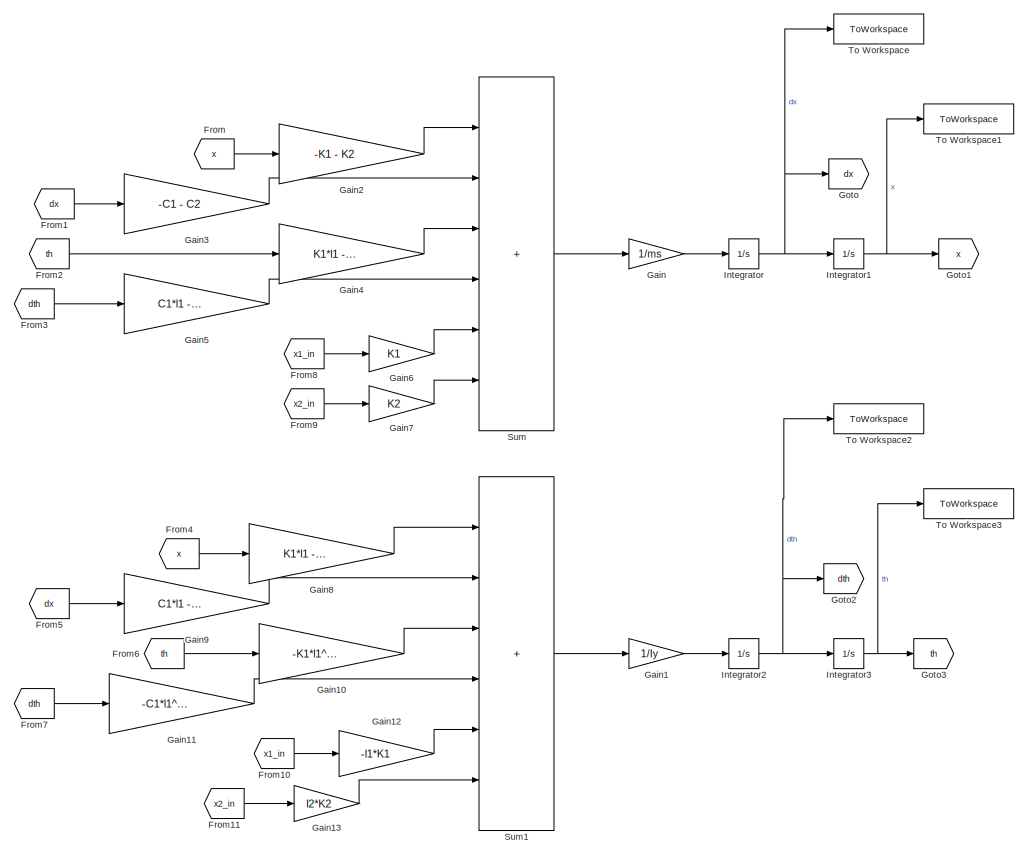
[diagram: root canvas - part 1/3, center side, full height]
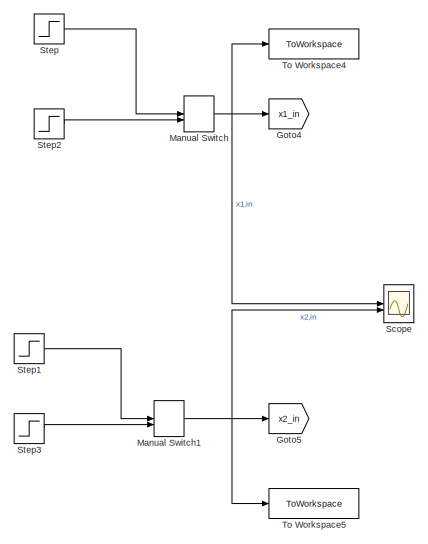
[diagram: root canvas - part 2/3, middle left region]
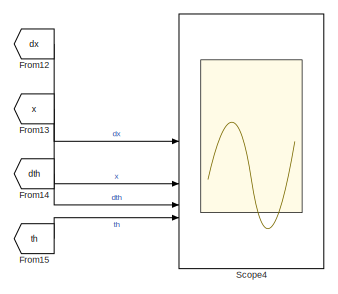
[diagram: root canvas - part 3/3, middle right region]
MODEL slx_75d889b5c3c4
KIND model
CONFIG AbsTol = auto
CONFIG EnableMultiTasking = off
CONFIG FixedStep = 1e-3
CONFIG MaxStep = auto
CONFIG MinStep = auto
CONFIG RelTol = 1e-3
CONFIG SampleTimeConstraint = Unconstrained
CONFIG SolverName = FixedStepAuto
CONFIG StartTime = 0.0
CONFIG StopTime = 10.0
BLOCK [From] From
  GotoTag = x
BLOCK [From] From1
  GotoTag = dx
BLOCK [From] From10
  GotoTag = x1_in
BLOCK [From] From11
  GotoTag = x2_in
BLOCK [From] From12
  GotoTag = dx
BLOCK [From] From13
  GotoTag = x
BLOCK [From] From14
  GotoTag = dth
BLOCK [From] From15
  GotoTag = th
BLOCK [From] From2
  GotoTag = th
BLOCK [From] From3
  GotoTag = dth
BLOCK [From] From4
  GotoTag = x
BLOCK [From] From5
  GotoTag = dx
BLOCK [From] From6
  GotoTag = th
BLOCK [From] From7
  GotoTag = dth
BLOCK [From] From8
  GotoTag = x1_in
BLOCK [From] From9
  GotoTag = x2_in
BLOCK [Gain] Gain
  Gain = 1/ms
BLOCK [Gain] Gain1
  Gain = 1/Iy
BLOCK [Gain] Gain10
  Gain = -K1*l1^2 - K2*l2^2
BLOCK [Gain] Gain11
  Gain = -C1*l1^2 - C2*l2^2
BLOCK [Gain] Gain12
  Gain = -l1*K1
BLOCK [Gain] Gain13
  Gain = l2*K2
BLOCK [Gain] Gain2
  Gain = -K1 - K2
BLOCK [Gain] Gain3
  Gain = -C1 - C2
BLOCK [Gain] Gain4
  Gain = K1*l1 - K2*l2
BLOCK [Gain] Gain5
  Gain = C1*l1 - C2*l2
BLOCK [Gain] Gain6
  Gain = K1
BLOCK [Gain] Gain7
  Gain = K2
BLOCK [Gain] Gain8
  Gain = K1*l1 - K2*l2
BLOCK [Gain] Gain9
  Gain = C1*l1 - C2*l2
BLOCK [Goto] Goto
  GotoTag = dx
BLOCK [Goto] Goto1
  GotoTag = x
BLOCK [Goto] Goto2
  GotoTag = dth
BLOCK [Goto] Goto3
  GotoTag = th
BLOCK [Goto] Goto4
  GotoTag = x1_in
BLOCK [Goto] Goto5
  GotoTag = x2_in
BLOCK [Integrator] Integrator
BLOCK [Integrator] Integrator1
BLOCK [Integrator] Integrator2
BLOCK [Integrator] Integrator3
BLOCK [ManualSwitch] Manual Switch
  CurrentSetting = 0
BLOCK [ManualSwitch] Manual Switch1
  CurrentSetting = 0
BLOCK [Scope] Scope
  Floating = off
  NumInputPorts = 2
  ScopeSpecificationString = Simulink.scopes.TimeScopeBlockCfg('CurrentConfiguration', extmgr.ConfigurationSet(extmgr.Configuration('Core','General UI',true,'FigureColor',[1 1 1]),extmgr.Configuration('Core','Source UI',true),extmgr.Configuration('Sources','WiredSimulink',true),extmgr.Configuration('Visuals','Time Domain',true,'SerializedDisplays',{struct('MinYLimReal','-0.125','MaxYLimReal','1.125','YLabelReal','','MinYLimMa...<+2236ch>
BLOCK [Scope] Scope4
  Floating = off
  NumInputPorts = 4
  ScopeSpecificationString = Simulink.scopes.TimeScopeBlockCfg('CurrentConfiguration', extmgr.ConfigurationSet(extmgr.Configuration('Core','General UI',true,'FigureColor',[1 1 1]),extmgr.Configuration('Core','Source UI',true),extmgr.Configuration('Sources','WiredSimulink',true,'DataLoggingVariableName','ScopeData1'),extmgr.Configuration('Visuals','Time Domain',true,'SerializedDisplays',{struct('MinYLimReal','-2.03567','MaxYLi...<+3953ch>
BLOCK [Step] Step
  SampleTime = 0
BLOCK [Step] Step1
  SampleTime = 0
  Time = 1 + (l1 + l2)/(speed)
BLOCK [Step] Step2
  SampleTime = 0
BLOCK [Step] Step3
  SampleTime = 0
  Time = 2
BLOCK [Sum] Sum
  IconShape = rectangular
  Inputs = |++++++
BLOCK [Sum] Sum1
  IconShape = rectangular
  Inputs = |++++++
BLOCK [ToWorkspace] To Workspace
  FixptAsFi = on
  MaxDataPoints = inf
  SampleTime = 0.01
  SaveFormat = Timeseries
  VariableName = dx
BLOCK [ToWorkspace] To Workspace1
  FixptAsFi = on
  MaxDataPoints = inf
  SampleTime = 0.01
  SaveFormat = Timeseries
  VariableName = x
BLOCK [ToWorkspace] To Workspace2
  FixptAsFi = on
  MaxDataPoints = inf
  SampleTime = 0.01
  SaveFormat = Timeseries
  VariableName = dth
BLOCK [ToWorkspace] To Workspace3
  FixptAsFi = on
  MaxDataPoints = inf
  SampleTime = 0.01
  SaveFormat = Timeseries
  VariableName = th
BLOCK [ToWorkspace] To Workspace4
  FixptAsFi = on
  MaxDataPoints = inf
  SampleTime = 0.01
  SaveFormat = Timeseries
  VariableName = x1_in
BLOCK [ToWorkspace] To Workspace5
  FixptAsFi = on
  MaxDataPoints = inf
  SampleTime = 0.01
  SaveFormat = Timeseries
  VariableName = x2_in
LINE From10:1 -> Gain12:1
LINE From11:1 -> Gain13:1
LINE From12:1 -> Scope4:1
LINE From13:1 -> Scope4:2
LINE From14:1 -> Scope4:3
LINE From15:1 -> Scope4:4
LINE From1:1 -> Gain3:1
LINE From2:1 -> Gain4:1
LINE From3:1 -> Gain5:1
LINE From4:1 -> Gain8:1
LINE From5:1 -> Gain9:1
LINE From6:1 -> Gain10:1
LINE From7:1 -> Gain11:1
LINE From8:1 -> Gain6:1
LINE From9:1 -> Gain7:1
LINE From:1 -> Gain2:1
LINE Gain10:1 -> Sum1:3
LINE Gain11:1 -> Sum1:4
LINE Gain12:1 -> Sum1:5
LINE Gain13:1 -> Sum1:6
LINE Gain1:1 -> Integrator2:1
LINE Gain2:1 -> Sum:1
LINE Gain3:1 -> Sum:2
LINE Gain4:1 -> Sum:3
LINE Gain5:1 -> Sum:4
LINE Gain6:1 -> Sum:5
LINE Gain7:1 -> Sum:6
LINE Gain8:1 -> Sum1:1
LINE Gain9:1 -> Sum1:2
LINE Gain:1 -> Integrator:1
NET Integrator1:1 -> Goto1:1, To Workspace1:1
NET Integrator2:1 -> Goto2:1, Integrator3:1, To Workspace2:1
NET Integrator3:1 -> Goto3:1, To Workspace3:1
NET Integrator:1 -> Goto:1, Integrator1:1, To Workspace:1
NET Manual Switch1:1 -> Goto5:1, Scope:2, To Workspace5:1
NET Manual Switch:1 -> Goto4:1, Scope:1, To Workspace4:1
LINE Step1:1 -> Manual Switch1:1
LINE Step2:1 -> Manual Switch:2
LINE Step3:1 -> Manual Switch1:2
LINE Step:1 -> Manual Switch:1
LINE Sum1:1 -> Gain1:1
LINE Sum:1 -> Gain:1
note: NET lines group one-source signal fan-out (src -> all destinations, sorted); 1:1 wires keep LINE
